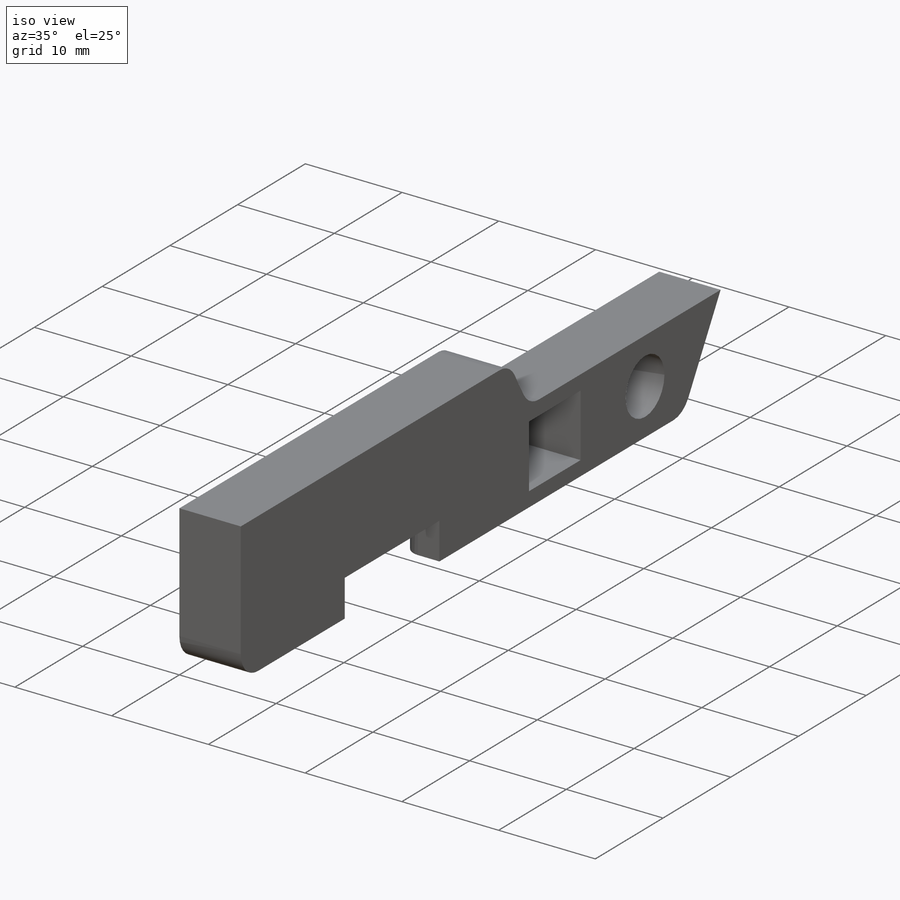
[diagram: iso view]
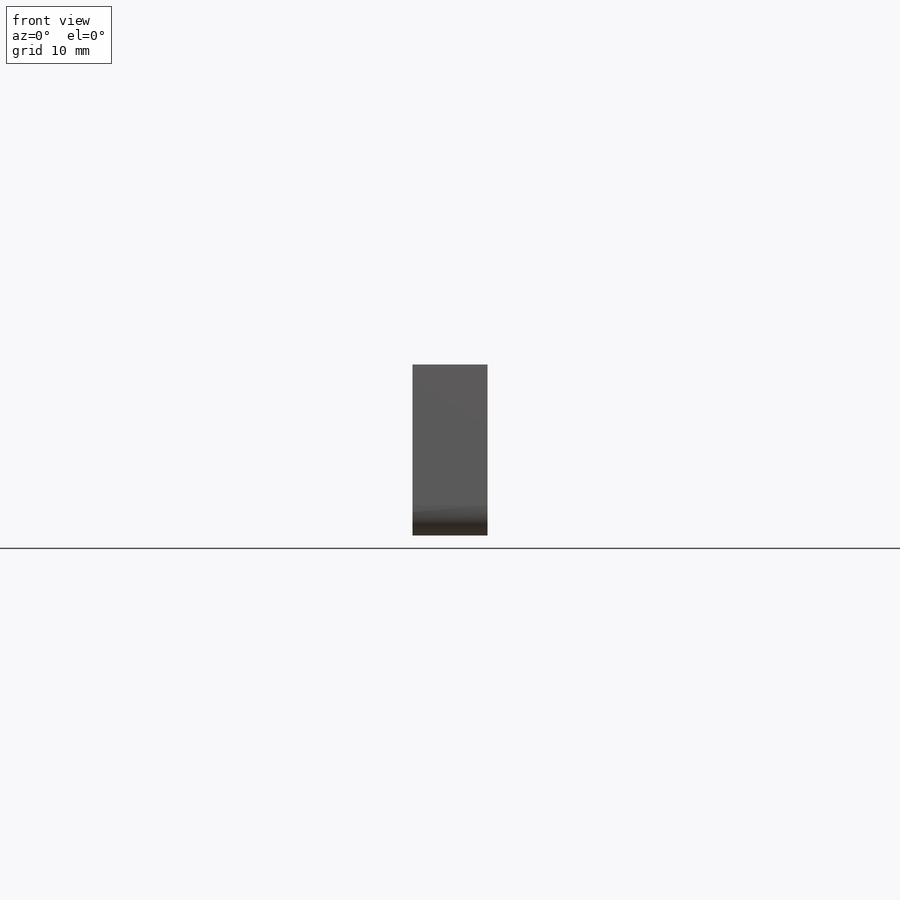
[diagram: front view]
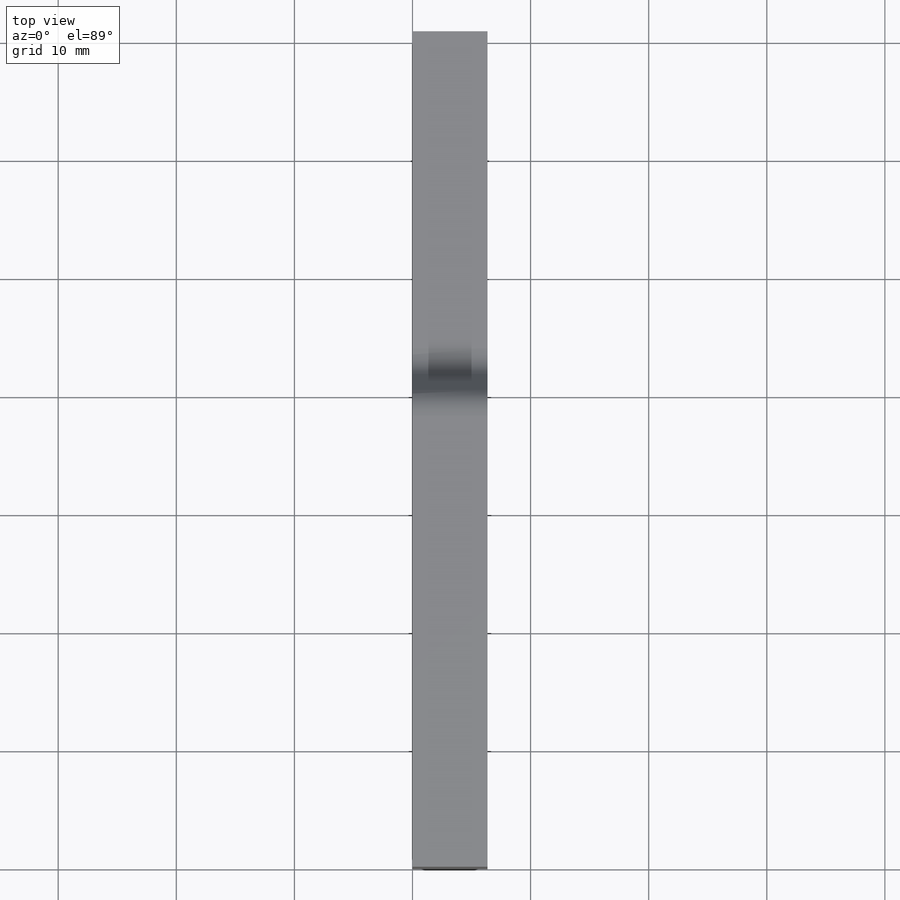
[diagram: top view]
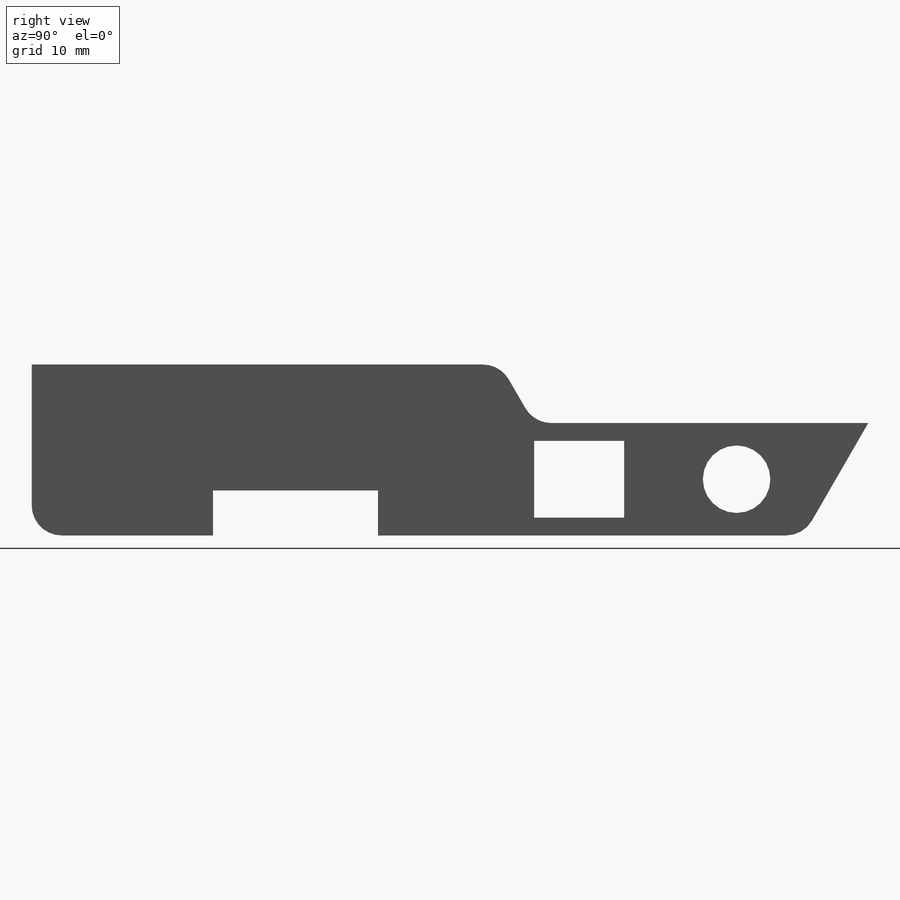
[diagram: right view]
SOLIDWORKS PART (.sldprt)
format: sldprt  version: not decoded by parser v0  size: 692,736 bytes
history: native  units: mm
features: sketch x5, cut_extrude x3, extrude x2, material x1, fillet x1, mirror x1 (+16 scaffold rows collapsed)
feature tree (29):
  scaffold x16  (default folders/planes/origin — collapsed)
  material  "Material <not specified>"
  sketch  "Sketch1"  dims[D1=2.54mm]
  extrude  "Boss-Extrude1"  Depth=6.35mm
  sketch  "Sketch2"  dims[D4=5.715mm D1=3.81mm D2=22.7076mm D3=13.97mm D5=6.5024mm D6=7.62mm D7=59.69mm D8=13.335mm]
  cut_extrude  "Cut-Extrude1"  [1 undecoded]
  sketch  "Sketch3"  dims[c1.D1=1.27mm c1.D2=5.08mm c2.D1=1.016mm c2.D3=8.89mm]
  cut_extrude  "Cut-Extrude2"  [1 undecoded]
  sketch  "Sketch4"  dims[D1=24.13mm D2=6.35mm]
  cut_extrude  "Cut-Extrude3"  Depth=2.54mm
  sketch  "Sketch5"
  extrude  "Boss-Extrude2"  [1 undecoded]
  fillet  "Fillet1"  Radius=1.5875mm
  mirror  "Mirror1"
decode coverage: 7 of 12 modeling features carry decoded parameters
note: 3 parameter values undecoded
summary: no parameter record found for 3 features
note: suppression state not decoded; provenance and decode notes live in map.json
